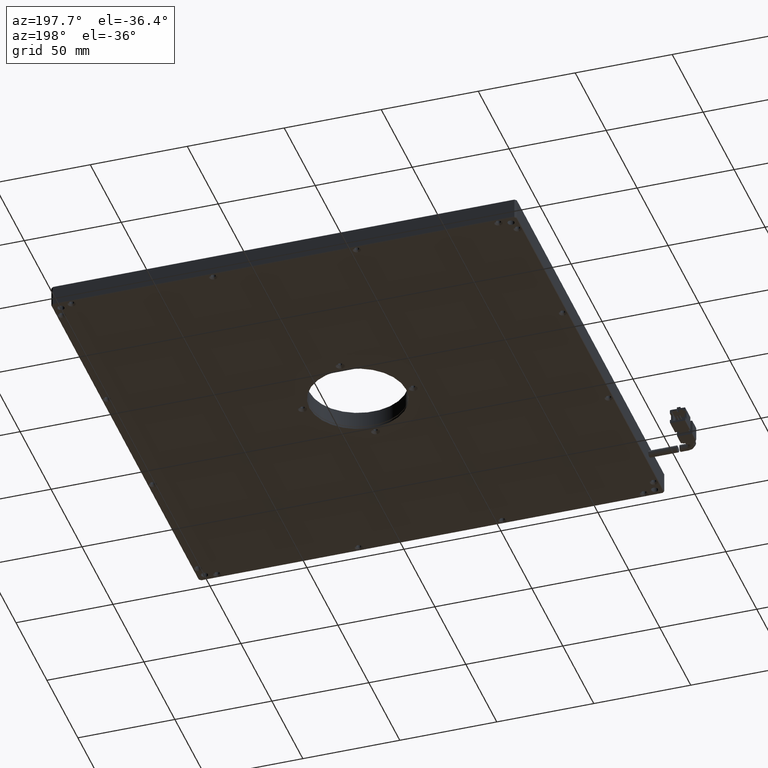
[diagram: clean part render]
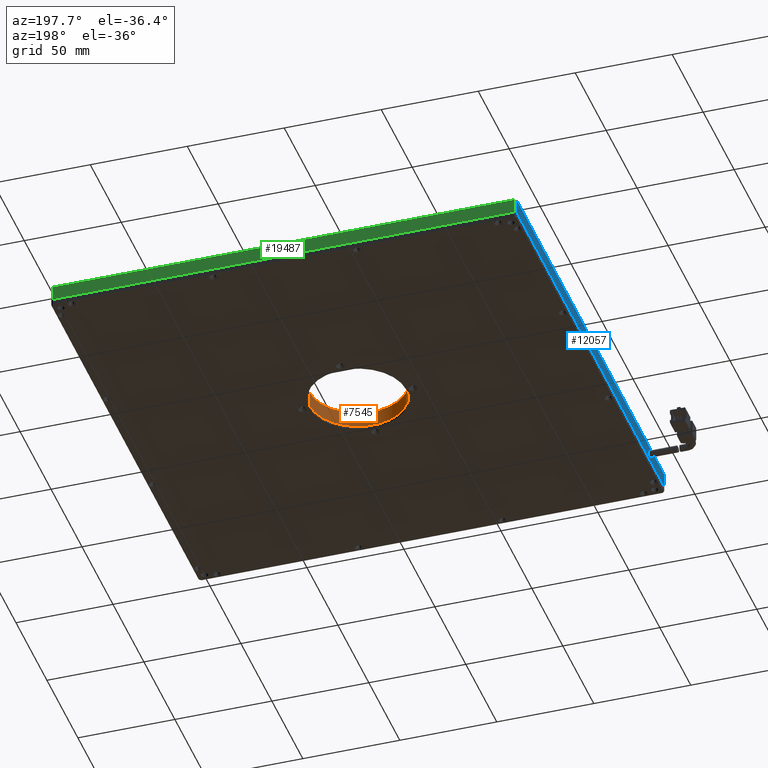
[diagram: same view with three faces highlighted in distinct colors, each labeled with its STEP entity id]
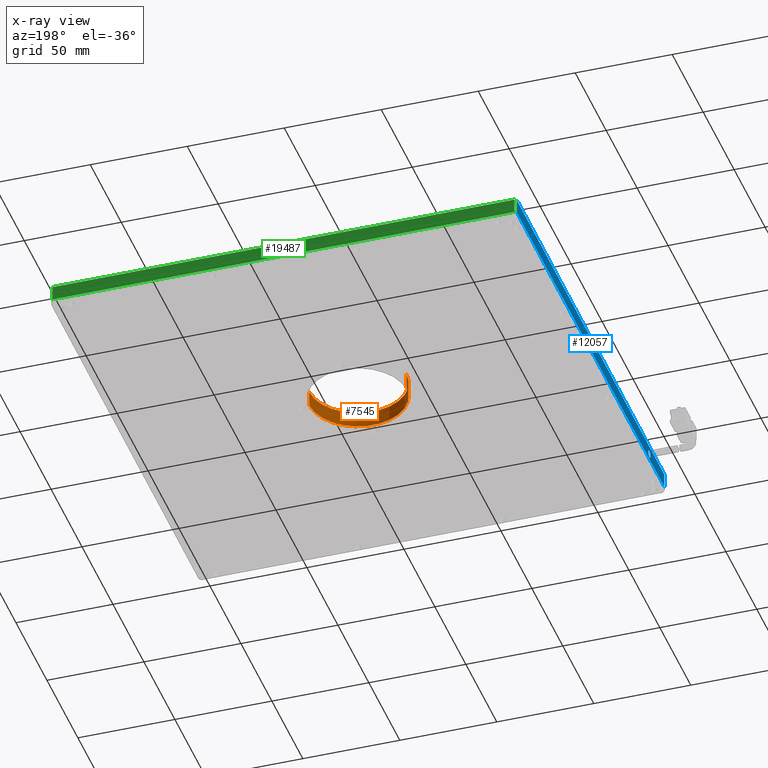
[diagram: x-ray of the same camera — body ghosted, the three highlighted faces saturated]
A machine part, auxiliary view with three faces highlighted in distinct colors.
The next image is the same camera in x-ray (body ghosted, the three faces saturated) — at least one of them is partly hidden behind the body in this view.
Their STEP definitions:

[orange] entity #7545 — the highlighted cylindrical surface (partial cylindrical patch) has radius 25 mm, axis along (0, -0, 1).
#195 = ORIENTED_EDGE ( 'NONE', *, *, #14501, .T. ) ;
#1667 = EDGE_CURVE ( 'NONE', #19734, #18619, #7778, .T. ) ;
#2057 = CIRCLE ( 'NONE', #11848, 25.00000000000002100 ) ;
#2674 = DIRECTION ( 'NONE',  ( 0.9999999981467232500, -6.088147129323923200E-005, 0.0000000000000000000 ) ) ;
#2998 = CARTESIAN_POINT ( 'NONE',  ( 10.94710549878895700, 18.54225001654977200, 3.700000000000017500 ) ) ;
#3038 = DIRECTION ( 'NONE',  ( 0.0000000000000000000, -0.0000000000000000000, 1.000000000000000000 ) ) ;
#3142 = DIRECTION ( 'NONE',  ( -0.0000000000000000000, 0.0000000000000000000, -1.000000000000000000 ) ) ;
#4392 = CARTESIAN_POINT ( 'NONE',  ( -39.05289440854727400, 18.54529409011443900, -3.000000000000000000 ) ) ;
#4395 = CARTESIAN_POINT ( 'NONE',  ( -14.05289445487915900, 18.54377205333210600, -4.499999999999988500 ) ) ;
#4608 = DIRECTION ( 'NONE',  ( 0.0000000000000000000, -0.0000000000000000000, 1.000000000000000000 ) ) ;
#4685 = CARTESIAN_POINT ( 'NONE',  ( 10.94710549878896100, 18.54225001654977200, -3.000000000000000000 ) ) ;
#4963 = EDGE_LOOP ( 'NONE', ( #10933, #195, #20561, #10972 ) ) ;
#6106 = DIRECTION ( 'NONE',  ( 0.0000000000000000000, -0.0000000000000000000, 1.000000000000000000 ) ) ;
#6551 = CARTESIAN_POINT ( 'NONE',  ( -14.05289445487915900, 18.54377205333210600, -3.000000000000000000 ) ) ;
#7048 = EDGE_CURVE ( 'NONE', #11205, #21876, #9719, .T. ) ;
#7537 = DIRECTION ( 'NONE',  ( 0.0000000000000000000, 0.0000000000000000000, -1.000000000000000000 ) ) ;
#7545 = ADVANCED_FACE ( 'NONE', ( #13700 ), #18751, .F. ) ;
#7778 = LINE ( 'NONE', #4392, #18975 ) ;
#9719 = LINE ( 'NONE', #4685, #13750 ) ;
#10049 = DIRECTION ( 'NONE',  ( -0.9999999981467232500, 6.088147129323919200E-005, 0.0000000000000000000 ) ) ;
#10933 = ORIENTED_EDGE ( 'NONE', *, *, #7048, .F. ) ;
#10972 = ORIENTED_EDGE ( 'NONE', *, *, #14305, .F. ) ;
#11205 = VERTEX_POINT ( 'NONE', #16623 ) ;
#11848 = AXIS2_PLACEMENT_3D ( 'NONE', #4395, #7537, #2674 ) ;
#12706 = CARTESIAN_POINT ( 'NONE',  ( -39.05289440854727400, 18.54529409011443900, 3.700000000000017500 ) ) ;
#13700 = FACE_OUTER_BOUND ( 'NONE', #4963, .T. ) ;
#13750 = VECTOR ( 'NONE', #4608, 1000.000000000000000 ) ;
#14305 = EDGE_CURVE ( 'NONE', #21876, #18619, #18559, .T. ) ;
#14501 = EDGE_CURVE ( 'NONE', #11205, #19734, #2057, .T. ) ;
#14516 = CARTESIAN_POINT ( 'NONE',  ( -39.05289440854725300, 18.54529409011443900, -4.499999999999988500 ) ) ;
#16623 = CARTESIAN_POINT ( 'NONE',  ( 10.94710549878894300, 18.54225001654977200, -4.499999999999988500 ) ) ;
#16680 = CARTESIAN_POINT ( 'NONE',  ( -14.05289445487915900, 18.54377205333210600, 3.700000000000017500 ) ) ;
#18559 = CIRCLE ( 'NONE', #21198, 25.00000000000003900 ) ;
#18619 = VERTEX_POINT ( 'NONE', #12706 ) ;
#18751 = CYLINDRICAL_SURFACE ( 'NONE', #20521, 25.00000000000003900 ) ;
#18975 = VECTOR ( 'NONE', #6106, 1000.000000000000000 ) ;
#19734 = VERTEX_POINT ( 'NONE', #14516 ) ;
#20048 = DIRECTION ( 'NONE',  ( -0.9999999981467232500, 6.088147129323919200E-005, 0.0000000000000000000 ) ) ;
#20521 = AXIS2_PLACEMENT_3D ( 'NONE', #6551, #3038, #20048 ) ;
#20561 = ORIENTED_EDGE ( 'NONE', *, *, #1667, .T. ) ;
#21198 = AXIS2_PLACEMENT_3D ( 'NONE', #16680, #3142, #10049 ) ;
#21876 = VERTEX_POINT ( 'NONE', #2998 ) ;

[blue] entity #12057 — the highlighted planar face has unit normal (1, 0, 0).
#44 = CARTESIAN_POINT ( 'NONE',  ( -134.0546296296296000, 138.5420370370370300, -2.999999999999998700 ) ) ;
#2103 = CARTESIAN_POINT ( 'NONE',  ( -134.0546296296296000, 137.5420370370370300, -2.999999999999998700 ) ) ;
#2462 = AXIS2_PLACEMENT_3D ( 'NONE', #11132, #9686, #9416 ) ;
#2670 = FACE_BOUND ( 'NONE', #6467, .T. ) ;
#2677 = DIRECTION ( 'NONE',  ( 0.0000000000000000000, 1.000000000000000000, 0.0000000000000000000 ) ) ;
#2910 = VECTOR ( 'NONE', #12346, 1000.000000000000000 ) ;
#2951 = ORIENTED_EDGE ( 'NONE', *, *, #12449, .F. ) ;
#4230 = AXIS2_PLACEMENT_3D ( 'NONE', #18072, #19543, #17929 ) ;
#6118 = CARTESIAN_POINT ( 'NONE',  ( -134.0546296296296000, 137.5420370370370600, 4.500000000000054200 ) ) ;
#6144 = FACE_OUTER_BOUND ( 'NONE', #15924, .T. ) ;
#6467 = EDGE_LOOP ( 'NONE', ( #2951, #19512 ) ) ;
#6542 = EDGE_CURVE ( 'NONE', #17048, #17371, #17684, .T. ) ;
#6607 = CARTESIAN_POINT ( 'NONE',  ( -134.0546296296296000, -100.4579629629629400, 5.000000000000000900 ) ) ;
#7138 = LINE ( 'NONE', #44, #20125 ) ;
#7209 = VECTOR ( 'NONE', #16852, 1000.000000000000000 ) ;
#7370 = DIRECTION ( 'NONE',  ( -1.000000000000000000, 0.0000000000000000000, 0.0000000000000000000 ) ) ;
#7901 = CARTESIAN_POINT ( 'NONE',  ( -134.0546296296296000, 138.5420370370370300, 4.500000000000054200 ) ) ;
#8230 = EDGE_CURVE ( 'NONE', #17918, #10713, #10689, .T. ) ;
#9150 = PLANE ( 'NONE',  #4230 ) ;
#9416 = DIRECTION ( 'NONE',  ( 0.0000000000000000000, 0.0000000000000000000, 1.000000000000000000 ) ) ;
#9686 = DIRECTION ( 'NONE',  ( -1.000000000000000000, 0.0000000000000000000, 0.0000000000000000000 ) ) ;
#10084 = AXIS2_PLACEMENT_3D ( 'NONE', #16044, #7370, #14208 ) ;
#10689 = LINE ( 'NONE', #7901, #17899 ) ;
#10713 = VERTEX_POINT ( 'NONE', #6118 ) ;
#11132 = CARTESIAN_POINT ( 'NONE',  ( -134.0546296295727600, -76.45796296296295200, 1.301042606982605300E-015 ) ) ;
#12036 = CARTESIAN_POINT ( 'NONE',  ( -134.0546296296296000, 137.5420370370369800, 5.000000000000000900 ) ) ;
#12057 = ADVANCED_FACE ( 'NONE', ( #6144, #2670 ), #9150, .F. ) ;
#12346 = DIRECTION ( 'NONE',  ( -0.0000000000000000000, -0.0000000000000000000, 1.000000000000000000 ) ) ;
#12354 = EDGE_CURVE ( 'NONE', #20102, #10713, #20449, .T. ) ;
#12449 = EDGE_CURVE ( 'NONE', #17371, #17048, #15947, .T. ) ;
#12669 = EDGE_CURVE ( 'NONE', #17918, #15198, #20201, .T. ) ;
#12813 = CARTESIAN_POINT ( 'NONE',  ( -134.0546296295727600, -76.45796296296295200, 1.950000000008004900 ) ) ;
#14208 = DIRECTION ( 'NONE',  ( 0.0000000000000000000, 0.0000000000000000000, 1.000000000000000000 ) ) ;
#14458 = EDGE_CURVE ( 'NONE', #15198, #20102, #7138, .T. ) ;
#14629 = CARTESIAN_POINT ( 'NONE',  ( -134.0546296296296000, -100.4579629629629400, -3.000000000000001300 ) ) ;
#14674 = CARTESIAN_POINT ( 'NONE',  ( -134.0546296295727600, -76.45796296296295200, -1.950000000008002200 ) ) ;
#15198 = VERTEX_POINT ( 'NONE', #14629 ) ;
#15924 = EDGE_LOOP ( 'NONE', ( #19708, #20860, #21142, #21955 ) ) ;
#15947 = CIRCLE ( 'NONE', #10084, 1.950000000008003600 ) ;
#16044 = CARTESIAN_POINT ( 'NONE',  ( -134.0546296295727600, -76.45796296296295200, 1.301042606982605300E-015 ) ) ;
#16852 = DIRECTION ( 'NONE',  ( 0.0000000000000000000, 0.0000000000000000000, -1.000000000000000000 ) ) ;
#17048 = VERTEX_POINT ( 'NONE', #14674 ) ;
#17371 = VERTEX_POINT ( 'NONE', #12813 ) ;
#17684 = CIRCLE ( 'NONE', #2462, 1.950000000008003600 ) ;
#17899 = VECTOR ( 'NONE', #2677, 1000.000000000000000 ) ;
#17918 = VERTEX_POINT ( 'NONE', #19615 ) ;
#17929 = DIRECTION ( 'NONE',  ( 0.0000000000000000000, 0.0000000000000000000, -1.000000000000000000 ) ) ;
#18072 = CARTESIAN_POINT ( 'NONE',  ( -134.0546296296296000, -101.4579629629629400, 5.000000000000000900 ) ) ;
#19512 = ORIENTED_EDGE ( 'NONE', *, *, #6542, .F. ) ;
#19543 = DIRECTION ( 'NONE',  ( 1.000000000000000000, 0.0000000000000000000, 0.0000000000000000000 ) ) ;
#19615 = CARTESIAN_POINT ( 'NONE',  ( -134.0546296296296000, -100.4579629629629400, 4.500000000000057700 ) ) ;
#19708 = ORIENTED_EDGE ( 'NONE', *, *, #8230, .T. ) ;
#20102 = VERTEX_POINT ( 'NONE', #2103 ) ;
#20125 = VECTOR ( 'NONE', #20786, 1000.000000000000000 ) ;
#20201 = LINE ( 'NONE', #6607, #7209 ) ;
#20449 = LINE ( 'NONE', #12036, #2910 ) ;
#20786 = DIRECTION ( 'NONE',  ( 0.0000000000000000000, 1.000000000000000000, 0.0000000000000000000 ) ) ;
#20860 = ORIENTED_EDGE ( 'NONE', *, *, #12354, .F. ) ;
#21142 = ORIENTED_EDGE ( 'NONE', *, *, #14458, .F. ) ;
#21955 = ORIENTED_EDGE ( 'NONE', *, *, #12669, .F. ) ;

[green] entity #19487 — the highlighted planar face has unit normal (0, -1, 0).
#318 = CARTESIAN_POINT ( 'NONE',  ( 104.9453703703704700, 138.5420370370370300, 4.500000000000052400 ) ) ;
#950 = VERTEX_POINT ( 'NONE', #318 ) ;
#1965 = ORIENTED_EDGE ( 'NONE', *, *, #17002, .F. ) ;
#1979 = VERTEX_POINT ( 'NONE', #11944 ) ;
#3156 = LINE ( 'NONE', #12016, #9809 ) ;
#5199 = EDGE_CURVE ( 'NONE', #16541, #950, #3156, .T. ) ;
#5387 = ORIENTED_EDGE ( 'NONE', *, *, #17813, .F. ) ;
#5993 = EDGE_LOOP ( 'NONE', ( #21949, #14536, #5387, #1965 ) ) ;
#6215 = CARTESIAN_POINT ( 'NONE',  ( -133.0546296296296600, 138.5420370370370300, 5.000000000000000900 ) ) ;
#6941 = VECTOR ( 'NONE', #17851, 1000.000000000000000 ) ;
#7392 = DIRECTION ( 'NONE',  ( 0.0000000000000000000, -1.000000000000000000, 0.0000000000000000000 ) ) ;
#8142 = DIRECTION ( 'NONE',  ( 0.0000000000000000000, -0.0000000000000000000, -1.000000000000000000 ) ) ;
#8385 = LINE ( 'NONE', #15206, #8648 ) ;
#8648 = VECTOR ( 'NONE', #15063, 1000.000000000000000 ) ;
#9089 = DIRECTION ( 'NONE',  ( 0.0000000000000000000, -0.0000000000000000000, -1.000000000000000000 ) ) ;
#9255 = CARTESIAN_POINT ( 'NONE',  ( -133.0546296296296600, 138.5420370370370300, 4.500000000000057700 ) ) ;
#9809 = VECTOR ( 'NONE', #12091, 1000.000000000000000 ) ;
#9859 = CARTESIAN_POINT ( 'NONE',  ( 104.9453703703704400, 138.5420370370370300, -2.999999999999998700 ) ) ;
#10784 = CARTESIAN_POINT ( 'NONE',  ( -134.0546296296296000, 138.5420370370370300, 5.000000000000000900 ) ) ;
#11191 = EDGE_CURVE ( 'NONE', #13107, #950, #8385, .T. ) ;
#11762 = LINE ( 'NONE', #6215, #20268 ) ;
#11944 = CARTESIAN_POINT ( 'NONE',  ( -133.0546296296296600, 138.5420370370370300, -2.999999999999998700 ) ) ;
#12016 = CARTESIAN_POINT ( 'NONE',  ( 104.9453703703704400, 138.5420370370370300, 5.000000000000000900 ) ) ;
#12091 = DIRECTION ( 'NONE',  ( -0.0000000000000000000, 0.0000000000000000000, 1.000000000000000000 ) ) ;
#13107 = VERTEX_POINT ( 'NONE', #9255 ) ;
#14124 = LINE ( 'NONE', #17779, #6941 ) ;
#14536 = ORIENTED_EDGE ( 'NONE', *, *, #5199, .F. ) ;
#15063 = DIRECTION ( 'NONE',  ( 1.000000000000000000, 0.0000000000000000000, 0.0000000000000000000 ) ) ;
#15206 = CARTESIAN_POINT ( 'NONE',  ( -134.0546296296296000, 138.5420370370370300, 4.500000000000077300 ) ) ;
#15411 = PLANE ( 'NONE',  #17508 ) ;
#16541 = VERTEX_POINT ( 'NONE', #9859 ) ;
#17002 = EDGE_CURVE ( 'NONE', #13107, #1979, #11762, .T. ) ;
#17508 = AXIS2_PLACEMENT_3D ( 'NONE', #10784, #7392, #9089 ) ;
#17779 = CARTESIAN_POINT ( 'NONE',  ( -134.0546296296296000, 138.5420370370370300, -2.999999999999998700 ) ) ;
#17813 = EDGE_CURVE ( 'NONE', #1979, #16541, #14124, .T. ) ;
#17851 = DIRECTION ( 'NONE',  ( 1.000000000000000000, -0.0000000000000000000, 0.0000000000000000000 ) ) ;
#19487 = ADVANCED_FACE ( 'NONE', ( #19790 ), #15411, .F. ) ;
#19790 = FACE_OUTER_BOUND ( 'NONE', #5993, .T. ) ;
#20268 = VECTOR ( 'NONE', #8142, 1000.000000000000000 ) ;
#21949 = ORIENTED_EDGE ( 'NONE', *, *, #11191, .T. ) ;